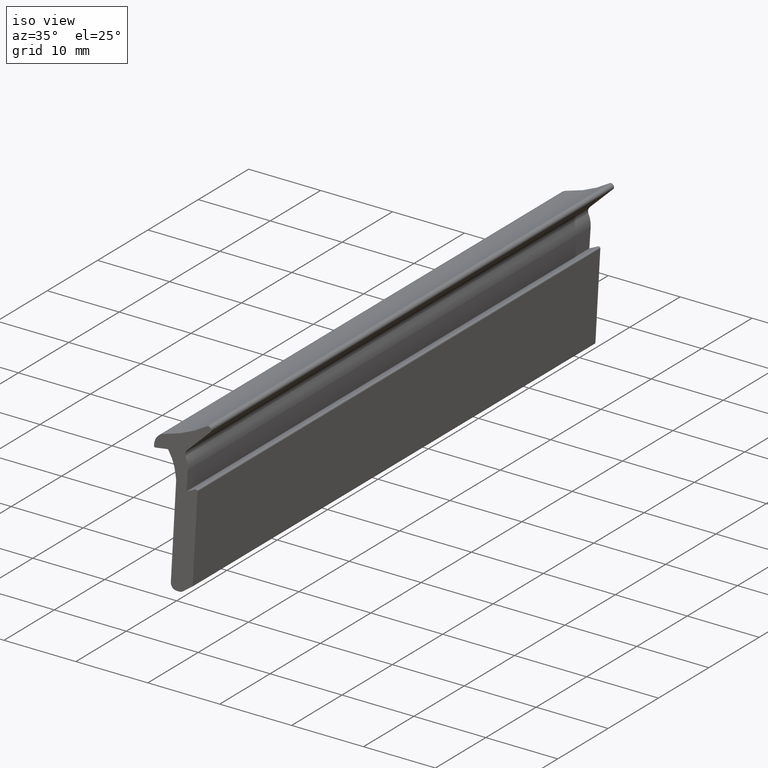
[diagram: clean part render]
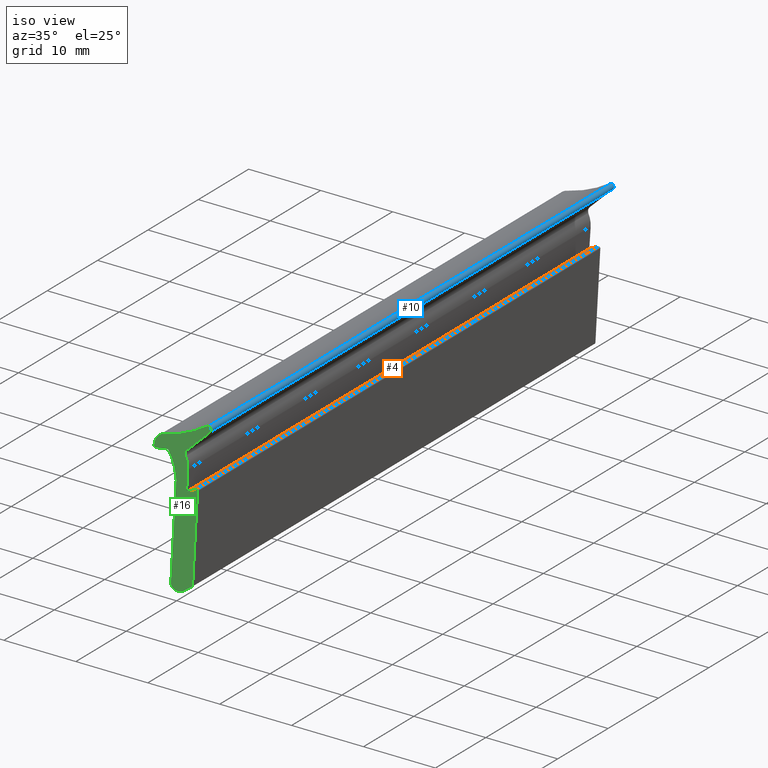
[diagram: same view with three faces highlighted in distinct colors, each labeled with its STEP entity id]
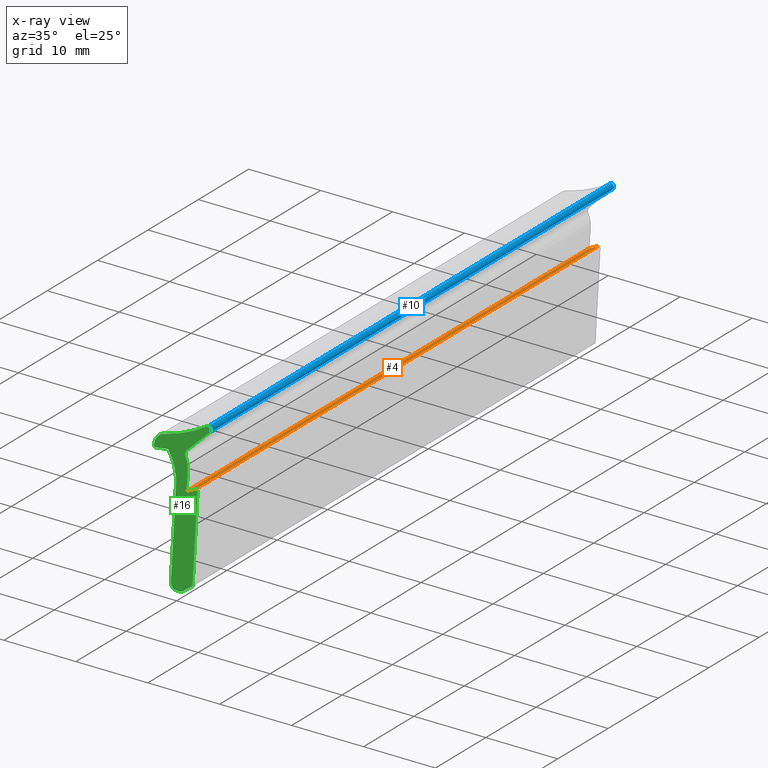
[diagram: x-ray of the same camera — body ghosted, the three highlighted faces saturated]
A machine part, iso view with three faces highlighted in distinct colors.
The next image is the same camera in x-ray (body ghosted, the three faces saturated) — at least one of them is partly hidden behind the body in this view.
Their STEP definitions:

[orange] entity #4 — the highlighted planar face has unit normal (-0.428, 0, 0.9038).
#4 = ADVANCED_FACE ( 'NONE', ( #1155 ), #134, .T. ) ;
#63 = VECTOR ( 'NONE', #478, 1000.000000000000000 ) ;
#68 = LINE ( 'NONE', #496, #69 ) ;
#69 = VECTOR ( 'NONE', #495, 1000.000000000000000 ) ;
#79 = VECTOR ( 'NONE', #499, 1000.000000000000000 ) ;
#80 = LINE ( 'NONE', #479, #63 ) ;
#99 = LINE ( 'NONE', #500, #79 ) ;
#105 = VECTOR ( 'NONE', #113, 1000.000000000000000 ) ;
#113 = DIRECTION ( 'NONE',  ( 0.0000000000000000000, 1.000000000000000000, 0.0000000000000000000 ) ) ;
#122 = CARTESIAN_POINT ( 'NONE',  ( 1.382881126428402900, 80.00000000000000000, 12.85612397143880000 ) ) ;
#134 = PLANE ( 'NONE',  #1023 ) ;
#136 = CARTESIAN_POINT ( 'NONE',  ( 1.382881126428400000, 80.00000000000000000, 12.85612397143880000 ) ) ;
#219 = CARTESIAN_POINT ( 'NONE',  ( 1.382881126428400900, 80.00000000000000000, 12.85612397143880000 ) ) ;
#240 = VERTEX_POINT ( 'NONE', #265 ) ;
#254 = CARTESIAN_POINT ( 'NONE',  ( 2.626334222469574300, 0.0000000000000000000, 13.44499848996342600 ) ) ;
#265 = CARTESIAN_POINT ( 'NONE',  ( 2.626334222469574300, 80.00000000000000000, 13.44499848996342600 ) ) ;
#267 = VERTEX_POINT ( 'NONE', #312 ) ;
#312 = CARTESIAN_POINT ( 'NONE',  ( 1.382881126428400900, -2.312964634635742900E-014, 12.85612397143880000 ) ) ;
#387 = VERTEX_POINT ( 'NONE', #254 ) ;
#478 = DIRECTION ( 'NONE',  ( -0.0000000000000000000, -1.000000000000000000, -0.0000000000000000000 ) ) ;
#479 = CARTESIAN_POINT ( 'NONE',  ( 2.626334222468556000, 80.00200000000001000, 13.44499848996558800 ) ) ;
#495 = DIRECTION ( 'NONE',  ( -0.9037742724889208400, -0.0000000000000000000, -0.4280094209093089400 ) ) ;
#496 = CARTESIAN_POINT ( 'NONE',  ( 1.382881126428400000, 80.00000000000000000, 12.85612397143880000 ) ) ;
#499 = DIRECTION ( 'NONE',  ( 0.9037742724889208400, 0.0000000000000000000, 0.4280094209093089400 ) ) ;
#500 = CARTESIAN_POINT ( 'NONE',  ( 1.382881126428400000, 0.0000000000000000000, 12.85612397143880000 ) ) ;
#567 = VERTEX_POINT ( 'NONE', #219 ) ;
#637 = DIRECTION ( 'NONE',  ( 0.9037742724889208400, 0.0000000000000000000, 0.4280094209093089400 ) ) ;
#650 = DIRECTION ( 'NONE',  ( -0.4280094209093089400, 0.0000000000000000000, 0.9037742724889208400 ) ) ;
#708 = EDGE_CURVE ( 'NONE', #267, #567, #903, .T. ) ;
#751 = EDGE_LOOP ( 'NONE', ( #778, #777, #776, #788 ) ) ;
#776 = ORIENTED_EDGE ( 'NONE', *, *, #1219, .F. ) ;
#777 = ORIENTED_EDGE ( 'NONE', *, *, #1210, .T. ) ;
#778 = ORIENTED_EDGE ( 'NONE', *, *, #708, .F. ) ;
#788 = ORIENTED_EDGE ( 'NONE', *, *, #1212, .T. ) ;
#903 = LINE ( 'NONE', #122, #105 ) ;
#1023 = AXIS2_PLACEMENT_3D ( 'NONE', #136, #650, #637 ) ;
#1155 = FACE_OUTER_BOUND ( 'NONE', #751, .T. ) ;
#1210 = EDGE_CURVE ( 'NONE', #267, #387, #99, .T. ) ;
#1212 = EDGE_CURVE ( 'NONE', #240, #567, #68, .T. ) ;
#1219 = EDGE_CURVE ( 'NONE', #240, #387, #80, .T. ) ;

[blue] entity #10 — the highlighted cylindrical surface (edge-blend (fillet) strip) has radius 0.4013 mm, axis along (0, 1, 0).
#10 = ADVANCED_FACE ( 'NONE', ( #975 ), #953, .T. ) ;
#98 = CIRCLE ( 'NONE', #1140, 0.4013248999999996500 ) ;
#121 = DIRECTION ( 'NONE',  ( -0.0000000000000000000, -1.000000000000000000, -0.0000000000000000000 ) ) ;
#131 = CARTESIAN_POINT ( 'NONE',  ( 4.729710673244870400, 80.00000000000000000, 21.22259683563660100 ) ) ;
#177 = DIRECTION ( 'NONE',  ( 0.0000000000000000000, 0.0000000000000000000, 1.000000000000000000 ) ) ;
#178 = DIRECTION ( 'NONE',  ( 0.0000000000000000000, 1.000000000000000000, 0.0000000000000000000 ) ) ;
#181 = CARTESIAN_POINT ( 'NONE',  ( 4.415861837793650000, 0.0000000000000000000, 21.47271801159000000 ) ) ;
#198 = DIRECTION ( 'NONE',  ( 0.0000000000000000000, 1.000000000000000000, 0.0000000000000000000 ) ) ;
#207 = CARTESIAN_POINT ( 'NONE',  ( 4.415861837793650000, 80.00000000000000000, 21.87404291159000300 ) ) ;
#225 = VERTEX_POINT ( 'NONE', #273 ) ;
#231 = CARTESIAN_POINT ( 'NONE',  ( 4.729710608340329100, 80.00000000000000000, 21.22259677300052200 ) ) ;
#247 = CARTESIAN_POINT ( 'NONE',  ( 4.729710608340329100, 3.469446951953614200E-015, 21.22259677300052200 ) ) ;
#263 = CARTESIAN_POINT ( 'NONE',  ( 4.415861837793650000, 0.0000000000000000000, 21.87404291159000300 ) ) ;
#266 = VERTEX_POINT ( 'NONE', #263 ) ;
#273 = CARTESIAN_POINT ( 'NONE',  ( 4.415861837793650000, 80.00000000000000000, 21.87404291159000300 ) ) ;
#405 = VERTEX_POINT ( 'NONE', #247 ) ;
#501 = VERTEX_POINT ( 'NONE', #231 ) ;
#522 = CARTESIAN_POINT ( 'NONE',  ( 4.415861837793650000, 80.00000000000000000, 21.47271801159000000 ) ) ;
#539 = DIRECTION ( 'NONE',  ( 0.0000000000000000000, 1.000000000000000000, 0.0000000000000000000 ) ) ;
#609 = DIRECTION ( 'NONE',  ( 1.080622879353367200E-014, 0.0000000000000000000, 1.000000000000000000 ) ) ;
#610 = DIRECTION ( 'NONE',  ( -0.0000000000000000000, -1.000000000000000000, -0.0000000000000000000 ) ) ;
#623 = DIRECTION ( 'NONE',  ( 0.0000000000000000000, 0.0000000000000000000, 1.000000000000000000 ) ) ;
#641 = CARTESIAN_POINT ( 'NONE',  ( 4.415861837793650000, 80.00000000000000000, 21.47271801159000000 ) ) ;
#685 = EDGE_CURVE ( 'NONE', #266, #225, #968, .T. ) ;
#690 = EDGE_CURVE ( 'NONE', #266, #405, #970, .T. ) ;
#705 = EDGE_CURVE ( 'NONE', #501, #405, #1015, .T. ) ;
#741 = ORIENTED_EDGE ( 'NONE', *, *, #1196, .T. ) ;
#742 = ORIENTED_EDGE ( 'NONE', *, *, #705, .F. ) ;
#746 = EDGE_LOOP ( 'NONE', ( #889, #891, #742, #741 ) ) ;
#889 = ORIENTED_EDGE ( 'NONE', *, *, #685, .F. ) ;
#891 = ORIENTED_EDGE ( 'NONE', *, *, #690, .T. ) ;
#894 = VECTOR ( 'NONE', #198, 1000.000000000000000 ) ;
#895 = VECTOR ( 'NONE', #121, 1000.000000000000000 ) ;
#953 = CYLINDRICAL_SURFACE ( 'NONE', #1172, 0.4013248999999996500 ) ;
#968 = LINE ( 'NONE', #207, #894 ) ;
#970 = CIRCLE ( 'NONE', #1163, 0.4013248999999996500 ) ;
#975 = FACE_OUTER_BOUND ( 'NONE', #746, .T. ) ;
#1015 = LINE ( 'NONE', #131, #895 ) ;
#1140 = AXIS2_PLACEMENT_3D ( 'NONE', #641, #610, #609 ) ;
#1163 = AXIS2_PLACEMENT_3D ( 'NONE', #181, #178, #177 ) ;
#1172 = AXIS2_PLACEMENT_3D ( 'NONE', #522, #539, #623 ) ;
#1196 = EDGE_CURVE ( 'NONE', #501, #225, #98, .T. ) ;

[green] entity #16 — the highlighted planar face has unit normal (0, -1, 0).
#16 = ADVANCED_FACE ( 'NONE', ( #941 ), #376, .T. ) ;
#30 = VECTOR ( 'NONE', #628, 1000.000000000000000 ) ;
#31 = CIRCLE ( 'NONE', #1148, 0.4013248999999996500 ) ;
#34 = CIRCLE ( 'NONE', #1139, 0.7999999999999999300 ) ;
#46 = VECTOR ( 'NONE', #468, 1000.000000000000000 ) ;
#48 = LINE ( 'NONE', #622, #83 ) ;
#50 = LINE ( 'NONE', #469, #46 ) ;
#57 = CIRCLE ( 'NONE', #1110, 0.2000000000000000900 ) ;
#60 = CIRCLE ( 'NONE', #1132, 0.2000000000000005100 ) ;
#62 = CIRCLE ( 'NONE', #1125, 0.2000000000000005100 ) ;
#72 = CIRCLE ( 'NONE', #1109, 3.365876399999998500 ) ;
#79 = VECTOR ( 'NONE', #499, 1000.000000000000000 ) ;
#81 = CIRCLE ( 'NONE', #1127, 0.7999999999999986000 ) ;
#82 = VECTOR ( 'NONE', #572, 1000.000000000000100 ) ;
#83 = VECTOR ( 'NONE', #621, 1000.000000000000100 ) ;
#84 = LINE ( 'NONE', #644, #30 ) ;
#86 = CIRCLE ( 'NONE', #1152, 0.1999999999999987900 ) ;
#90 = LINE ( 'NONE', #574, #82 ) ;
#96 = CIRCLE ( 'NONE', #1135, 18.07227000000000300 ) ;
#99 = LINE ( 'NONE', #500, #79 ) ;
#110 = CARTESIAN_POINT ( 'NONE',  ( -1.292179705563629900, 0.0000000000000000000, 17.27847413251560100 ) ) ;
#138 = DIRECTION ( 'NONE',  ( 0.0000000000000000000, 0.0000000000000000000, 1.000000000000000000 ) ) ;
#142 = DIRECTION ( 'NONE',  ( 0.0000000000000000000, 1.000000000000000000, 0.0000000000000000000 ) ) ;
#146 = DIRECTION ( 'NONE',  ( 0.1233671312122569400, 0.0000000000000000000, -0.9923610990644775600 ) ) ;
#147 = CARTESIAN_POINT ( 'NONE',  ( -0.09187447615553059900, 0.0000000000000000000, 14.20810506444270000 ) ) ;
#154 = DIRECTION ( 'NONE',  ( 0.0000000000000000000, 0.0000000000000000000, 1.000000000000000000 ) ) ;
#155 = DIRECTION ( 'NONE',  ( 0.0000000000000000000, 1.000000000000000000, 0.0000000000000000000 ) ) ;
#157 = CARTESIAN_POINT ( 'NONE',  ( -2.942730300004340100, 0.0000000000000000000, 17.41160846687740000 ) ) ;
#165 = CARTESIAN_POINT ( 'NONE',  ( -6.647521358782770000, 0.0000000000000000000, 13.86528353956269800 ) ) ;
#171 = DIRECTION ( 'NONE',  ( 0.0000000000000000000, 0.0000000000000000000, 1.000000000000000000 ) ) ;
#172 = DIRECTION ( 'NONE',  ( -0.0000000000000000000, -1.000000000000000000, -0.0000000000000000000 ) ) ;
#173 = VERTEX_POINT ( 'NONE', #274 ) ;
#175 = DIRECTION ( 'NONE',  ( 0.05676368567396007000, 0.0000000000000000000, 0.9983876421454283000 ) ) ;
#176 = CARTESIAN_POINT ( 'NONE',  ( -1.243040143568640000, 0.0000000000000000000, 17.44406416155600000 ) ) ;
#177 = DIRECTION ( 'NONE',  ( 0.0000000000000000000, 0.0000000000000000000, 1.000000000000000000 ) ) ;
#178 = DIRECTION ( 'NONE',  ( 0.0000000000000000000, 1.000000000000000000, 0.0000000000000000000 ) ) ;
#181 = CARTESIAN_POINT ( 'NONE',  ( 4.415861837793650000, 0.0000000000000000000, 21.47271801159000000 ) ) ;
#182 = DIRECTION ( 'NONE',  ( 1.000000000000000000, 0.0000000000000000000, 0.0000000000000000000 ) ) ;
#183 = CARTESIAN_POINT ( 'NONE',  ( 2.228355824800579900, 0.0000000000000000000, 1.235416238565559200 ) ) ;
#195 = DIRECTION ( 'NONE',  ( 0.0000000000000000000, 0.0000000000000000000, 1.000000000000000000 ) ) ;
#196 = DIRECTION ( 'NONE',  ( 0.0000000000000000000, 1.000000000000000000, 0.0000000000000000000 ) ) ;
#197 = CARTESIAN_POINT ( 'NONE',  ( -1.495331636292010100E-012, 0.0000000000000000000, 0.7999999999999609600 ) ) ;
#199 = CARTESIAN_POINT ( 'NONE',  ( -0.1542317931518019900, 0.0000000000000000000, 0.0000000000000000000 ) ) ;
#200 = DIRECTION ( 'NONE',  ( 0.05676368567403072100, 0.0000000000000000000, 0.9983876421454244100 ) ) ;
#202 = CARTESIAN_POINT ( 'NONE',  ( -0.1404533344389890000, 0.0000000000000000000, 12.42232563803260000 ) ) ;
#222 = CARTESIAN_POINT ( 'NONE',  ( -0.7981704098079343000, 0.0000000000000000000, 0.8540739947675680700 ) ) ;
#223 = CARTESIAN_POINT ( 'NONE',  ( -0.1282094019314419500, 0.0000000000000000000, 14.50038199852632000 ) ) ;
#226 = CARTESIAN_POINT ( 'NONE',  ( -7.479693280843589000E-013, 0.0000000000000000000, -1.951563910473908000E-014 ) ) ;
#228 = CARTESIAN_POINT ( 'NONE',  ( 1.235320137243974200, 0.0000000000000000000, 17.26473317968714100 ) ) ;
#232 = VERTEX_POINT ( 'NONE', #271 ) ;
#234 = VERTEX_POINT ( 'NONE', #269 ) ;
#237 = CARTESIAN_POINT ( 'NONE',  ( -2.984898366780269100, 0.0000000000000000000, 17.21610436424940400 ) ) ;
#239 = CARTESIAN_POINT ( 'NONE',  ( 2.911613635079500600, 3.469446951953614200E-015, 13.25289089833300500 ) ) ;
#241 = CARTESIAN_POINT ( 'NONE',  ( 2.228355824800579500, 3.469446951953614200E-015, 1.235416238565558500 ) ) ;
#244 = CARTESIAN_POINT ( 'NONE',  ( -1.130593850654348700, 0.0000000000000000000, 17.39632998364934800 ) ) ;
#247 = CARTESIAN_POINT ( 'NONE',  ( 4.729710608340329100, 3.469446951953614200E-015, 21.22259677300052200 ) ) ;
#250 = CARTESIAN_POINT ( 'NONE',  ( -1.251526575406228100, 3.469446951953614200E-015, 17.47429885773791400 ) ) ;
#251 = CARTESIAN_POINT ( 'NONE',  ( -3.142693847820040800, 0.0000000000000000000, 17.40779014985669400 ) ) ;
#252 = CARTESIAN_POINT ( 'NONE',  ( 1.496619778700798200, 0.0000000000000000000, 18.10250496876753000 ) ) ;
#253 = CARTESIAN_POINT ( 'NONE',  ( 0.3882436094572624400, 0.0000000000000000000, -8.153200337090993300E-014 ) ) ;
#254 = CARTESIAN_POINT ( 'NONE',  ( 2.626334222469574300, 0.0000000000000000000, 13.44499848996342600 ) ) ;
#255 = CARTESIAN_POINT ( 'NONE',  ( 1.570360135919193900, 0.0000000000000000000, 15.62344675522043300 ) ) ;
#256 = CARTESIAN_POINT ( 'NONE',  ( 0.8573398330152017800, 0.0000000000000000000, 0.1519654846816654000 ) ) ;
#258 = CARTESIAN_POINT ( 'NONE',  ( 2.711936106650410000, 0.0000000000000000000, 13.46424363546780100 ) ) ;
#261 = CARTESIAN_POINT ( 'NONE',  ( 2.145952352261705400, 0.0000000000000000000, 1.084760346869954300 ) ) ;
#263 = CARTESIAN_POINT ( 'NONE',  ( 4.415861837793650000, 0.0000000000000000000, 21.87404291159000300 ) ) ;
#266 = VERTEX_POINT ( 'NONE', #263 ) ;
#267 = VERTEX_POINT ( 'NONE', #312 ) ;
#269 = CARTESIAN_POINT ( 'NONE',  ( -0.05553966489899920400, 0.0000000000000000000, 13.91582905154919900 ) ) ;
#270 = VERTEX_POINT ( 'NONE', #261 ) ;
#271 = CARTESIAN_POINT ( 'NONE',  ( 4.274182064949770600, 0.0000000000000000000, 21.84820240750396500 ) ) ;
#274 = CARTESIAN_POINT ( 'NONE',  ( -1.512052473046002300, 0.0000000000000000000, 19.32492363705893000 ) ) ;
#279 = VERTEX_POINT ( 'NONE', #258 ) ;
#287 = DIRECTION ( 'NONE',  ( 0.0000000000000000000, 0.0000000000000000000, 1.000000000000000000 ) ) ;
#288 = DIRECTION ( 'NONE',  ( 0.0000000000000000000, 1.000000000000000000, 0.0000000000000000000 ) ) ;
#301 = VERTEX_POINT ( 'NONE', #256 ) ;
#312 = CARTESIAN_POINT ( 'NONE',  ( 1.382881126428400900, -2.312964634635742900E-014, 12.85612397143880000 ) ) ;
#366 = DIRECTION ( 'NONE',  ( 0.0000000000000000000, -0.0000000000000000000, -1.000000000000000000 ) ) ;
#367 = DIRECTION ( 'NONE',  ( 0.0000000000000000000, -1.000000000000000000, 0.0000000000000000000 ) ) ;
#376 = PLANE ( 'NONE',  #1169 ) ;
#377 = CARTESIAN_POINT ( 'NONE',  ( -0.1542317931518019900, 0.0000000000000000000, 12.12264221494169900 ) ) ;
#380 = VERTEX_POINT ( 'NONE', #255 ) ;
#387 = VERTEX_POINT ( 'NONE', #254 ) ;
#390 = VERTEX_POINT ( 'NONE', #253 ) ;
#392 = VERTEX_POINT ( 'NONE', #252 ) ;
#394 = VERTEX_POINT ( 'NONE', #251 ) ;
#396 = VERTEX_POINT ( 'NONE', #250 ) ;
#404 = CARTESIAN_POINT ( 'NONE',  ( 0.3882436094572590000, 0.0000000000000000000, 0.7999999999998880200 ) ) ;
#405 = VERTEX_POINT ( 'NONE', #247 ) ;
#414 = VERTEX_POINT ( 'NONE', #244 ) ;
#424 = VERTEX_POINT ( 'NONE', #241 ) ;
#431 = VERTEX_POINT ( 'NONE', #239 ) ;
#436 = VERTEX_POINT ( 'NONE', #237 ) ;
#468 = DIRECTION ( 'NONE',  ( 0.7195697205638583700, 0.0000000000000000000, 0.6944202022173972000 ) ) ;
#469 = CARTESIAN_POINT ( 'NONE',  ( 1.496619778700730000, 0.0000000000000000000, 18.10250496876749800 ) ) ;
#480 = DIRECTION ( 'NONE',  ( 0.0000000000000000000, 0.0000000000000000000, 1.000000000000000000 ) ) ;
#481 = DIRECTION ( 'NONE',  ( 0.0000000000000000000, 1.000000000000000000, 0.0000000000000000000 ) ) ;
#483 = CARTESIAN_POINT ( 'NONE',  ( 2.028678296371490200, 0.0000000000000000000, 1.246768975700349900 ) ) ;
#489 = DIRECTION ( 'NONE',  ( 0.0000000000000000000, 0.0000000000000000000, 1.000000000000000000 ) ) ;
#490 = DIRECTION ( 'NONE',  ( 0.0000000000000000000, 1.000000000000000000, 0.0000000000000000000 ) ) ;
#491 = DIRECTION ( 'NONE',  ( 0.0000000000000000000, 0.0000000000000000000, 1.000000000000000000 ) ) ;
#492 = DIRECTION ( 'NONE',  ( 0.0000000000000000000, 1.000000000000000000, 0.0000000000000000000 ) ) ;
#498 = CARTESIAN_POINT ( 'NONE',  ( 2.711936106650410000, 0.0000000000000000000, 13.26424363546780000 ) ) ;
#499 = DIRECTION ( 'NONE',  ( 0.9037742724889208400, 0.0000000000000000000, 0.4280094209093089400 ) ) ;
#500 = CARTESIAN_POINT ( 'NONE',  ( 1.382881126428400000, 0.0000000000000000000, 12.85612397143880000 ) ) ;
#502 = CARTESIAN_POINT ( 'NONE',  ( 2.711936106650410000, 0.0000000000000000000, 13.26424363546780000 ) ) ;
#503 = DIRECTION ( 'NONE',  ( 0.0000000000000000000, 0.0000000000000000000, 1.000000000000000000 ) ) ;
#504 = DIRECTION ( 'NONE',  ( 0.0000000000000000000, 1.000000000000000000, 0.0000000000000000000 ) ) ;
#517 = VERTEX_POINT ( 'NONE', #228 ) ;
#530 = VERTEX_POINT ( 'NONE', #226 ) ;
#552 = VERTEX_POINT ( 'NONE', #223 ) ;
#557 = VERTEX_POINT ( 'NONE', #222 ) ;
#572 = DIRECTION ( 'NONE',  ( 0.06759249350663143500, 0.0000000000000000000, 0.9977130122543035300 ) ) ;
#574 = CARTESIAN_POINT ( 'NONE',  ( 1.382881126428400000, 0.0000000000000000000, 12.85612397143880000 ) ) ;
#580 = CARTESIAN_POINT ( 'NONE',  ( -1.791290084530180000, 0.0000000000000000000, 15.79206399008820000 ) ) ;
#582 = DIRECTION ( 'NONE',  ( 0.0000000000000000000, 0.0000000000000000000, 1.000000000000000000 ) ) ;
#583 = DIRECTION ( 'NONE',  ( 0.0000000000000000000, 1.000000000000000000, 0.0000000000000000000 ) ) ;
#585 = CARTESIAN_POINT ( 'NONE',  ( 2.004558028133109900, 0.0000000000000000000, 17.48444450670609700 ) ) ;
#611 = DIRECTION ( 'NONE',  ( 0.0000000000000000000, 0.0000000000000000000, 1.000000000000000000 ) ) ;
#612 = DIRECTION ( 'NONE',  ( 0.0000000000000000000, 1.000000000000000000, 0.0000000000000000000 ) ) ;
#614 = CARTESIAN_POINT ( 'NONE',  ( -5.731911498888919700, 0.0000000000000000000, 36.89762214863039700 ) ) ;
#621 = DIRECTION ( 'NONE',  ( 0.9890874559008997500, 0.0000000000000000000, 0.1473295780876520700 ) ) ;
#622 = CARTESIAN_POINT ( 'NONE',  ( -2.984898366780259800, 0.0000000000000000000, 17.21610436424940000 ) ) ;
#628 = DIRECTION ( 'NONE',  ( -0.8100431441474602600, 0.0000000000000000000, -0.5863702794478050700 ) ) ;
#644 = CARTESIAN_POINT ( 'NONE',  ( 4.041619437585059600, 0.0000000000000000000, 2.456987056756899900 ) ) ;
#645 = DIRECTION ( 'NONE',  ( 0.0000000000000000000, 0.0000000000000000000, 1.000000000000000000 ) ) ;
#648 = DIRECTION ( 'NONE',  ( 0.0000000000000000000, 0.0000000000000000000, 1.000000000000000000 ) ) ;
#649 = DIRECTION ( 'NONE',  ( 0.0000000000000000000, 1.000000000000000000, 0.0000000000000000000 ) ) ;
#651 = DIRECTION ( 'NONE',  ( 0.0000000000000000000, 1.000000000000000000, 0.0000000000000000000 ) ) ;
#652 = CARTESIAN_POINT ( 'NONE',  ( 4.415861837793650000, 0.0000000000000000000, 21.47271801159000000 ) ) ;
#684 = EDGE_CURVE ( 'NONE', #557, #234, #1113, .T. ) ;
#686 = EDGE_CURVE ( 'NONE', #530, #557, #1153, .T. ) ;
#689 = EDGE_CURVE ( 'NONE', #530, #390, #1051, .T. ) ;
#690 = EDGE_CURVE ( 'NONE', #266, #405, #970, .T. ) ;
#691 = EDGE_CURVE ( 'NONE', #424, #431, #1089, .T. ) ;
#692 = EDGE_CURVE ( 'NONE', #173, #394, #1179, .T. ) ;
#697 = EDGE_CURVE ( 'NONE', #436, #394, #972, .T. ) ;
#699 = EDGE_CURVE ( 'NONE', #552, #234, #1081, .T. ) ;
#700 = EDGE_CURVE ( 'NONE', #414, #552, #1087, .T. ) ;
#711 = EDGE_CURVE ( 'NONE', #396, #414, #86, .T. ) ;
#712 = EDGE_CURVE ( 'NONE', #436, #396, #48, .T. ) ;
#715 = EDGE_CURVE ( 'NONE', #232, #266, #31, .T. ) ;
#718 = EDGE_LOOP ( 'NONE', ( #863, #824, #877, #848, #881, #744, #867, #875, #809, #849, #861, #862, #836, #864, #871, #816, #856, #817, #815, #818, #857, #814, #823 ) ) ;
#744 = ORIENTED_EDGE ( 'NONE', *, *, #1214, .F. ) ;
#809 = ORIENTED_EDGE ( 'NONE', *, *, #1209, .F. ) ;
#814 = ORIENTED_EDGE ( 'NONE', *, *, #686, .F. ) ;
#815 = ORIENTED_EDGE ( 'NONE', *, *, #700, .T. ) ;
#816 = ORIENTED_EDGE ( 'NONE', *, *, #697, .F. ) ;
#817 = ORIENTED_EDGE ( 'NONE', *, *, #711, .T. ) ;
#818 = ORIENTED_EDGE ( 'NONE', *, *, #699, .T. ) ;
#823 = ORIENTED_EDGE ( 'NONE', *, *, #689, .T. ) ;
#824 = ORIENTED_EDGE ( 'NONE', *, *, #1191, .F. ) ;
#836 = ORIENTED_EDGE ( 'NONE', *, *, #715, .F. ) ;
#848 = ORIENTED_EDGE ( 'NONE', *, *, #691, .T. ) ;
#849 = ORIENTED_EDGE ( 'NONE', *, *, #1203, .T. ) ;
#856 = ORIENTED_EDGE ( 'NONE', *, *, #712, .T. ) ;
#857 = ORIENTED_EDGE ( 'NONE', *, *, #684, .F. ) ;
#861 = ORIENTED_EDGE ( 'NONE', *, *, #1225, .T. ) ;
#862 = ORIENTED_EDGE ( 'NONE', *, *, #690, .F. ) ;
#863 = ORIENTED_EDGE ( 'NONE', *, *, #1185, .F. ) ;
#864 = ORIENTED_EDGE ( 'NONE', *, *, #1195, .T. ) ;
#867 = ORIENTED_EDGE ( 'NONE', *, *, #1210, .F. ) ;
#871 = ORIENTED_EDGE ( 'NONE', *, *, #692, .T. ) ;
#875 = ORIENTED_EDGE ( 'NONE', *, *, #1206, .T. ) ;
#877 = ORIENTED_EDGE ( 'NONE', *, *, #1218, .F. ) ;
#881 = ORIENTED_EDGE ( 'NONE', *, *, #1215, .F. ) ;
#914 = VECTOR ( 'NONE', #200, 999.9999999999998900 ) ;
#917 = VECTOR ( 'NONE', #182, 1000.000000000000000 ) ;
#941 = FACE_OUTER_BOUND ( 'NONE', #718, .T. ) ;
#970 = CIRCLE ( 'NONE', #1163, 0.4013248999999996500 ) ;
#972 = CIRCLE ( 'NONE', #1149, 0.1999999999999987900 ) ;
#978 = VECTOR ( 'NONE', #175, 1000.000000000000100 ) ;
#980 = VECTOR ( 'NONE', #146, 1000.000000000000000 ) ;
#1051 = LINE ( 'NONE', #199, #917 ) ;
#1077 = AXIS2_PLACEMENT_3D ( 'NONE', #176, #172, #171 ) ;
#1081 = LINE ( 'NONE', #147, #980 ) ;
#1087 = CIRCLE ( 'NONE', #1142, 6.550173900000000800 ) ;
#1089 = LINE ( 'NONE', #183, #978 ) ;
#1109 = AXIS2_PLACEMENT_3D ( 'NONE', #580, #504, #503 ) ;
#1110 = AXIS2_PLACEMENT_3D ( 'NONE', #483, #481, #480 ) ;
#1113 = LINE ( 'NONE', #202, #914 ) ;
#1125 = AXIS2_PLACEMENT_3D ( 'NONE', #498, #492, #491 ) ;
#1127 = AXIS2_PLACEMENT_3D ( 'NONE', #585, #583, #582 ) ;
#1132 = AXIS2_PLACEMENT_3D ( 'NONE', #502, #490, #489 ) ;
#1135 = AXIS2_PLACEMENT_3D ( 'NONE', #614, #612, #611 ) ;
#1139 = AXIS2_PLACEMENT_3D ( 'NONE', #404, #651, #645 ) ;
#1142 = AXIS2_PLACEMENT_3D ( 'NONE', #165, #142, #138 ) ;
#1148 = AXIS2_PLACEMENT_3D ( 'NONE', #652, #649, #648 ) ;
#1149 = AXIS2_PLACEMENT_3D ( 'NONE', #157, #155, #154 ) ;
#1152 = AXIS2_PLACEMENT_3D ( 'NONE', #110, #288, #287 ) ;
#1153 = CIRCLE ( 'NONE', #1230, 0.8000000000000000400 ) ;
#1163 = AXIS2_PLACEMENT_3D ( 'NONE', #181, #178, #177 ) ;
#1169 = AXIS2_PLACEMENT_3D ( 'NONE', #377, #367, #366 ) ;
#1179 = CIRCLE ( 'NONE', #1077, 1.899999999999999000 ) ;
#1185 = EDGE_CURVE ( 'NONE', #301, #390, #34, .T. ) ;
#1191 = EDGE_CURVE ( 'NONE', #270, #301, #84, .T. ) ;
#1195 = EDGE_CURVE ( 'NONE', #232, #173, #96, .T. ) ;
#1203 = EDGE_CURVE ( 'NONE', #517, #392, #81, .T. ) ;
#1206 = EDGE_CURVE ( 'NONE', #267, #380, #90, .T. ) ;
#1209 = EDGE_CURVE ( 'NONE', #517, #380, #72, .T. ) ;
#1210 = EDGE_CURVE ( 'NONE', #267, #387, #99, .T. ) ;
#1214 = EDGE_CURVE ( 'NONE', #387, #279, #62, .T. ) ;
#1215 = EDGE_CURVE ( 'NONE', #279, #431, #60, .T. ) ;
#1218 = EDGE_CURVE ( 'NONE', #424, #270, #57, .T. ) ;
#1225 = EDGE_CURVE ( 'NONE', #392, #405, #50, .T. ) ;
#1230 = AXIS2_PLACEMENT_3D ( 'NONE', #197, #196, #195 ) ;